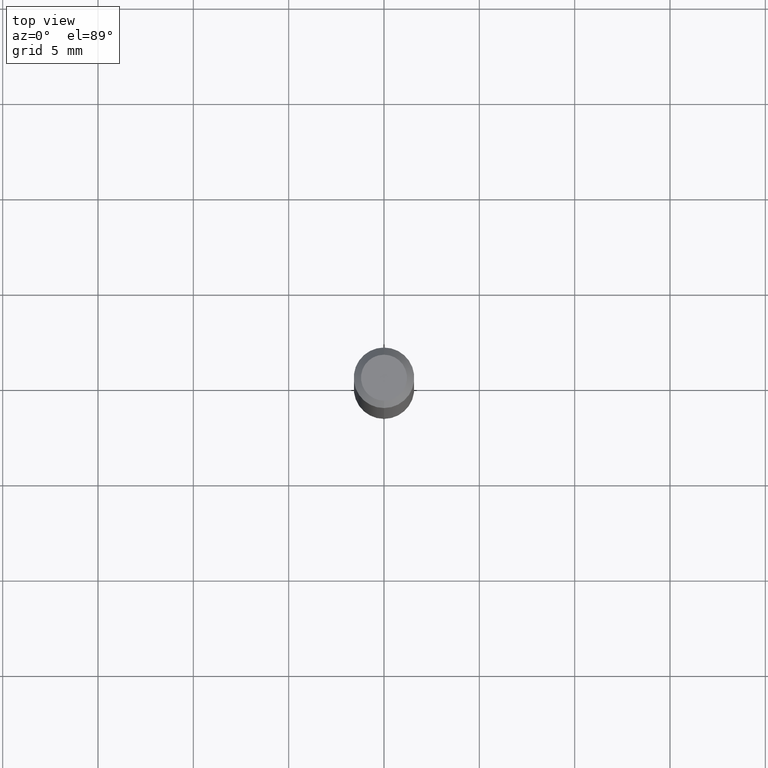
[diagram: clean part render]
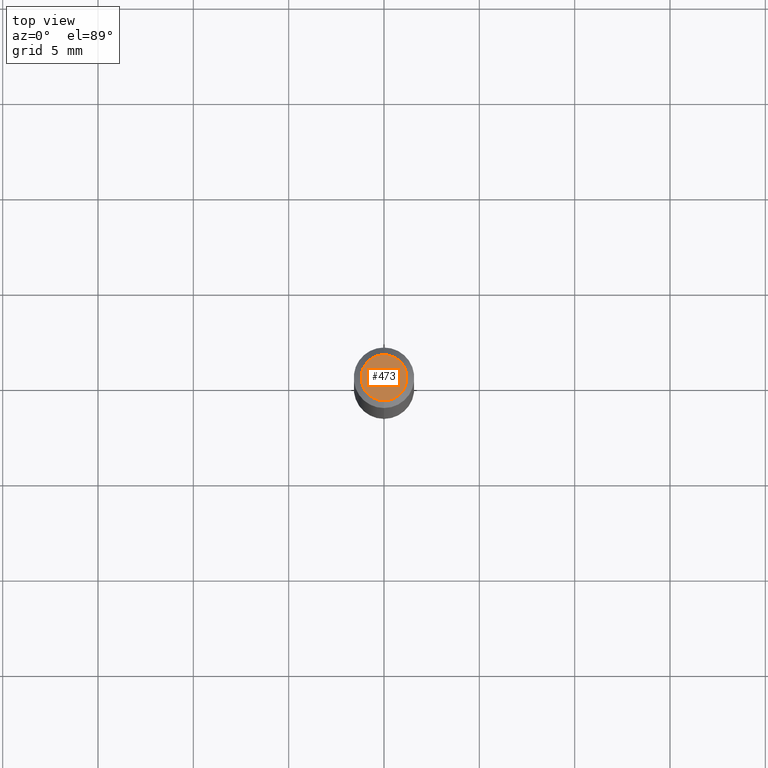
[diagram: same view with one face highlighted and labeled with its STEP entity id]
A machine part, top view. The second image highlights one B-rep face of the part: STEP entity #473.
In plain terms, the highlighted planar face has unit normal (0, -0, -1).
Its self-contained STEP definition (entity closure, byte-faithful):
#2 = CARTESIAN_POINT ( 'NONE',  ( -3.773273898774340269E-16, -0.04749999999999999362, 1.569983304665834349E-16 ) ) ;
#25 = DIRECTION ( 'NONE',  ( -6.982962677686266711E-15, -1.000000000000000000, 3.491621196352252651E-15 ) ) ;
#58 = ORIENTED_EDGE ( 'NONE', *, *, #88, .T. ) ;
#88 = EDGE_CURVE ( 'NONE', #185, #301, #350, .T. ) ;
#112 = DIRECTION ( 'NONE',  ( -6.982962677686266711E-15, -1.000000000000000000, 3.491621196352252651E-15 ) ) ;
#130 = AXIS2_PLACEMENT_3D ( 'NONE', #472, #196, #112 ) ;
#135 = DIRECTION ( 'NONE',  ( 6.982962677686265922E-15, 1.000000000000000000, -3.491621196352251862E-15 ) ) ;
#137 = PLANE ( 'NONE',  #287 ) ;
#181 = CIRCLE ( 'NONE', #467, 0.04749999999999999362 ) ;
#185 = VERTEX_POINT ( 'NONE', #315 ) ;
#196 = DIRECTION ( 'NONE',  ( -2.445371144208507908E-29, 3.491621196352252256E-15, 1.000000000000000000 ) ) ;
#214 = DIRECTION ( 'NONE',  ( -2.445371144208507908E-29, 3.491621196352252256E-15, 1.000000000000000000 ) ) ;
#250 = DIRECTION ( 'NONE',  ( 2.445371144208507908E-29, -3.491621196352251862E-15, -1.000000000000000000 ) ) ;
#261 = CARTESIAN_POINT ( 'NONE',  ( 3.316907271900976096E-16, 0.04749999999999999362, -1.702788450068062563E-16 ) ) ;
#278 = EDGE_LOOP ( 'NONE', ( #58, #458 ) ) ;
#287 = AXIS2_PLACEMENT_3D ( 'NONE', #261, #250, #135 ) ;
#301 = VERTEX_POINT ( 'NONE', #2 ) ;
#315 = CARTESIAN_POINT ( 'NONE',  ( 3.840629472727447874E-16, 0.04749999999999999362, -1.747056831868805136E-16 ) ) ;
#333 = CARTESIAN_POINT ( 'NONE',  ( 2.165052469126822300E-46, -3.091368404473746049E-32, -8.853676360148528563E-18 ) ) ;
#350 = CIRCLE ( 'NONE', #130, 0.04749999999999999362 ) ;
#458 = ORIENTED_EDGE ( 'NONE', *, *, #460, .T. ) ;
#460 = EDGE_CURVE ( 'NONE', #301, #185, #181, .T. ) ;
#467 = AXIS2_PLACEMENT_3D ( 'NONE', #333, #214, #25 ) ;
#472 = CARTESIAN_POINT ( 'NONE',  ( 2.165052469126822300E-46, -3.091368404473746049E-32, -8.853676360148528563E-18 ) ) ;
#473 = ADVANCED_FACE ( 'NONE', ( #494 ), #137, .F. ) ;
#494 = FACE_OUTER_BOUND ( 'NONE', #278, .T. ) ;